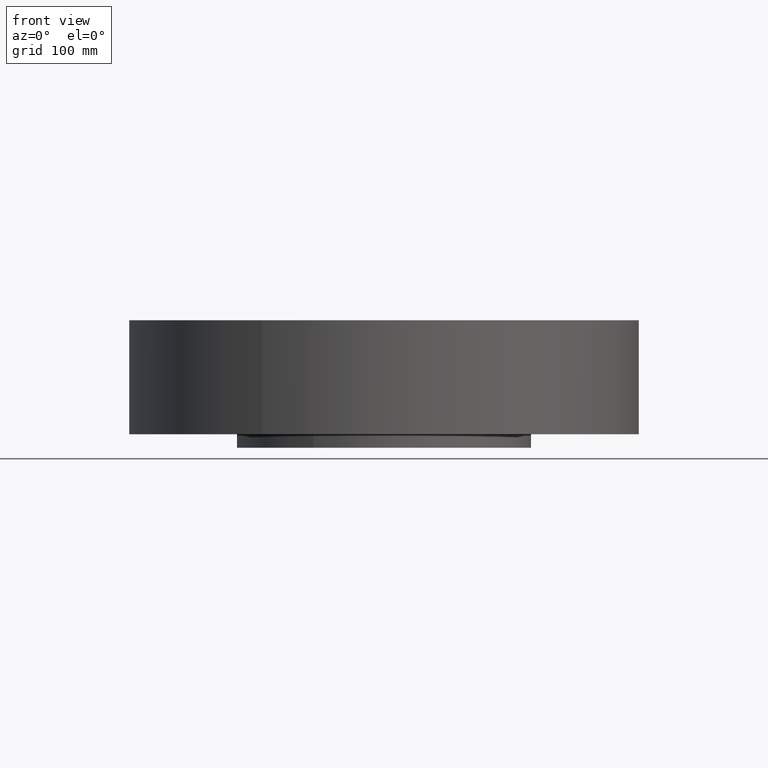
[diagram: clean part render]
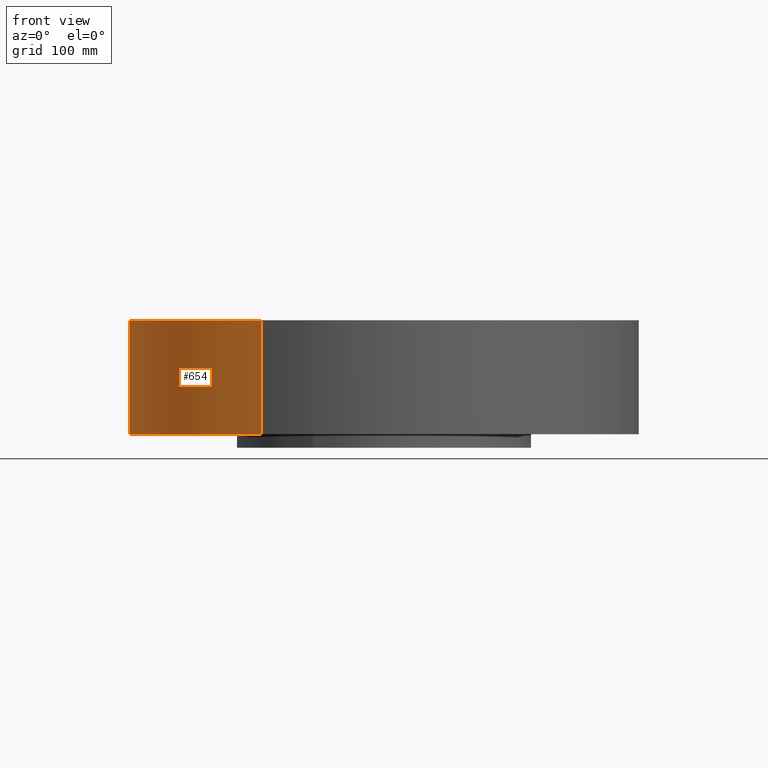
[diagram: same view with one face highlighted and labeled with its STEP entity id]
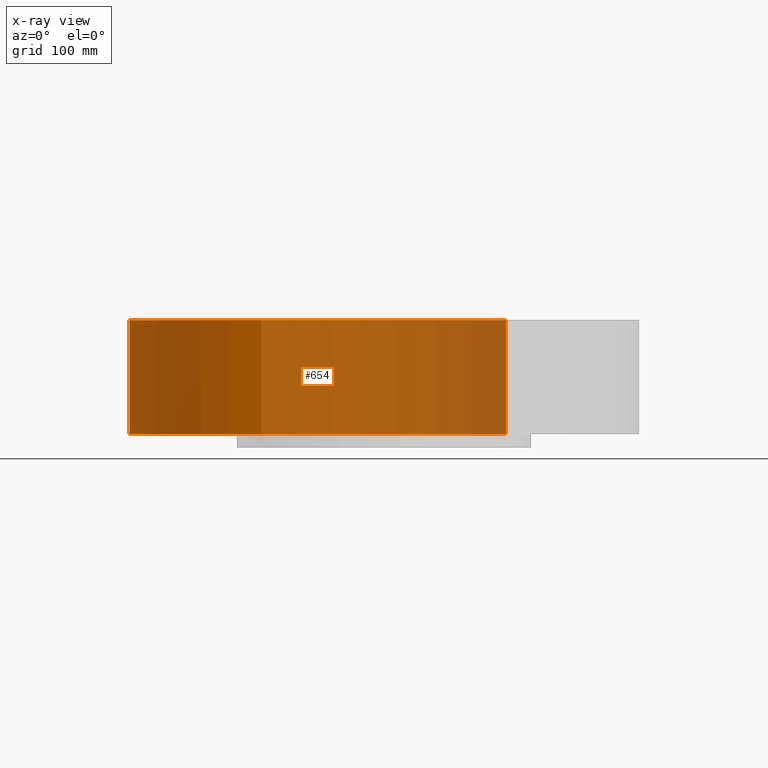
[diagram: x-ray of the same camera — body ghosted, the highlighted face saturated]
A machine part, front view. The second image highlights one B-rep face of the part: STEP entity #654.
The next image is the same camera in x-ray: the body ghosted, the highlighted face saturated — about 65% of this face is hidden behind the body in this view.
In plain terms, the highlighted cylindrical surface (partial cylindrical patch) has radius 241.3 mm, axis along (0, 0, -1).
Its self-contained STEP definition (entity closure, byte-faithful):
#502=AXIS2_PLACEMENT_3D('Circle Axis2P3D',#500,#501,$) ;
#615=AXIS2_PLACEMENT_3D('Cylinder Axis2P3D',#612,#613,#614) ;
#645=AXIS2_PLACEMENT_3D('Circle Axis2P3D',#643,#644,$) ;
#500=CARTESIAN_POINT('Axis2P3D Location',(0.,0.,0.)) ;
#504=CARTESIAN_POINT('Vertex',(-4.55454261676,-8.33703433799,8.39223703654E-016)) ;
#506=CARTESIAN_POINT('Vertex',(4.55454261676,8.33703433799,8.39223703654E-016)) ;
#612=CARTESIAN_POINT('Axis2P3D Location',(0.,0.,1.87500000001)) ;
#617=CARTESIAN_POINT('Line Origine',(4.55454261676,8.33703433799,2.12500000001)) ;
#621=CARTESIAN_POINT('Vertex',(4.55454261676,8.33703433799,4.25000000002)) ;
#628=CARTESIAN_POINT('Vertex',(-4.55454261676,-8.33703433799,4.25000000002)) ;
#631=CARTESIAN_POINT('Line Origine',(-4.55454261676,-8.33703433799,2.12500000001)) ;
#643=CARTESIAN_POINT('Axis2P3D Location',(0.,0.,4.25000000002)) ;
#501=DIRECTION('Axis2P3D Direction',(0.,0.,-0.0393700787402)) ;
#613=DIRECTION('Axis2P3D Direction',(0.,0.,-0.0393700787402)) ;
#614=DIRECTION('Axis2P3D XDirection',(-0.0188750212049,-0.0345504945626,0.)) ;
#618=DIRECTION('Vector Direction',(0.,0.,-0.0393700787402)) ;
#632=DIRECTION('Vector Direction',(0.,0.,-0.0393700787402)) ;
#644=DIRECTION('Axis2P3D Direction',(0.,0.,-0.0393700787402)) ;
#619=VECTOR('Line Direction',#618,0.0393700787402) ;
#633=VECTOR('Line Direction',#632,0.0393700787402) ;
#649=ORIENTED_EDGE('',*,*,#508,.F.) ;
#650=ORIENTED_EDGE('',*,*,#635,.T.) ;
#651=ORIENTED_EDGE('',*,*,#647,.T.) ;
#652=ORIENTED_EDGE('',*,*,#623,.F.) ;
#654=ADVANCED_FACE('PartBody',(#653),#616,.T.) ;
#503=CIRCLE('generated circle',#502,9.50000000004) ;
#646=CIRCLE('generated circle',#645,9.50000000004) ;
#616=CYLINDRICAL_SURFACE('generated cylinder',#615,9.50000000004) ;
#508=EDGE_CURVE('',#505,#507,#503,.T.) ;
#623=EDGE_CURVE('',#507,#622,#620,.F.) ;
#635=EDGE_CURVE('',#505,#629,#634,.F.) ;
#647=EDGE_CURVE('',#629,#622,#646,.T.) ;
#648=EDGE_LOOP('',(#649,#650,#651,#652)) ;
#653=FACE_OUTER_BOUND('',#648,.T.) ;
#620=LINE('Line',#617,#619) ;
#634=LINE('Line',#631,#633) ;
#505=VERTEX_POINT('',#504) ;
#507=VERTEX_POINT('',#506) ;
#622=VERTEX_POINT('',#621) ;
#629=VERTEX_POINT('',#628) ;